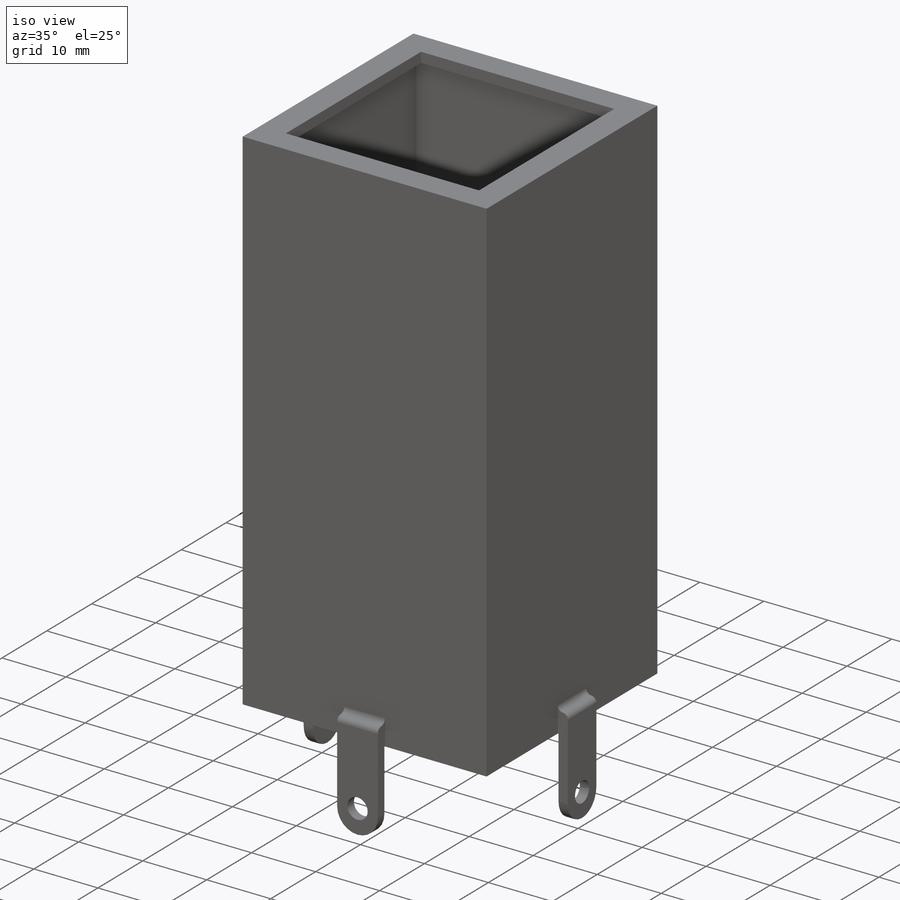
[diagram: iso view]
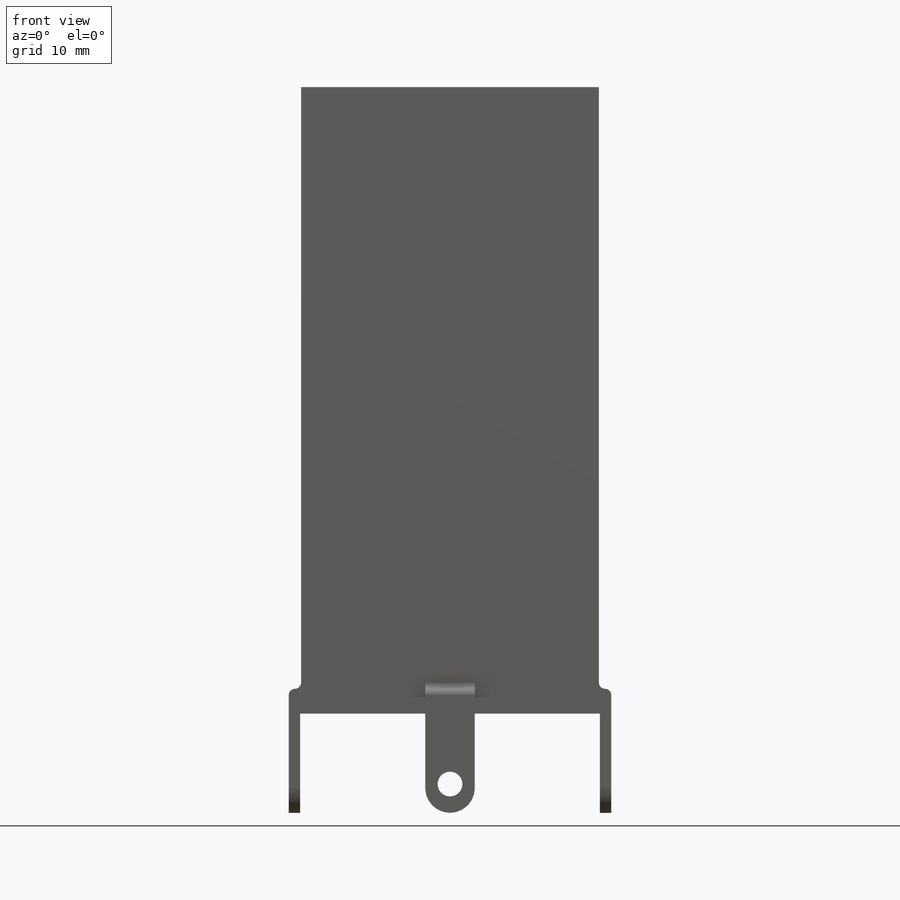
[diagram: front view]
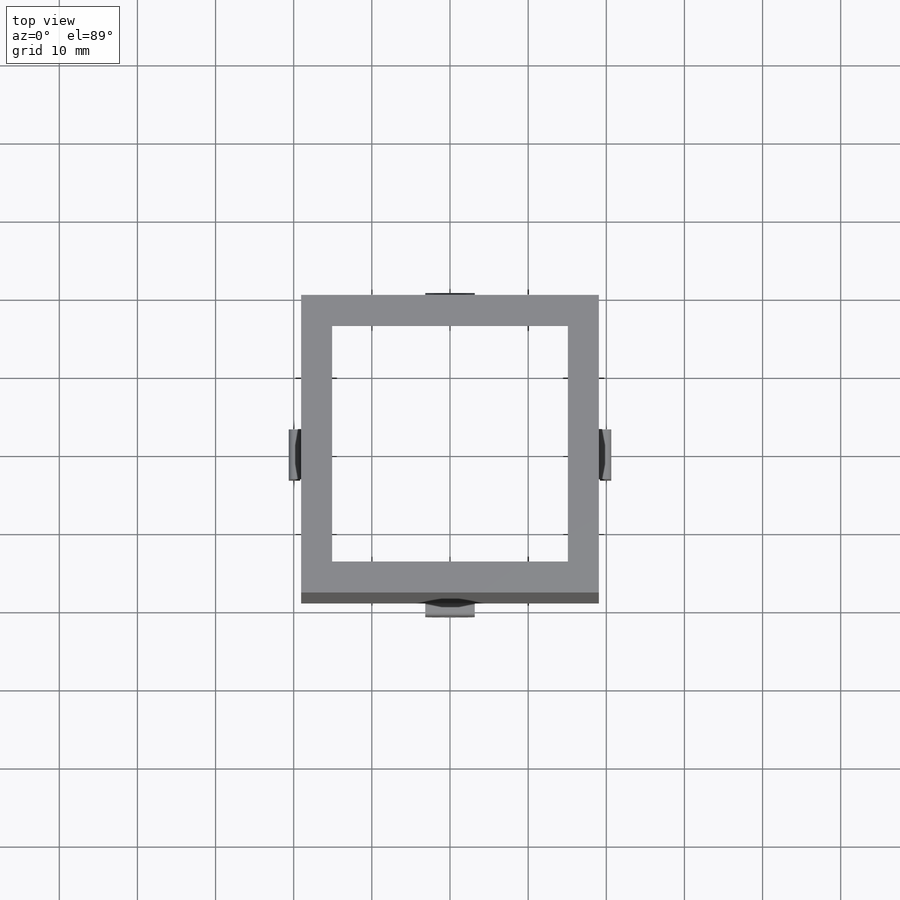
[diagram: top view]
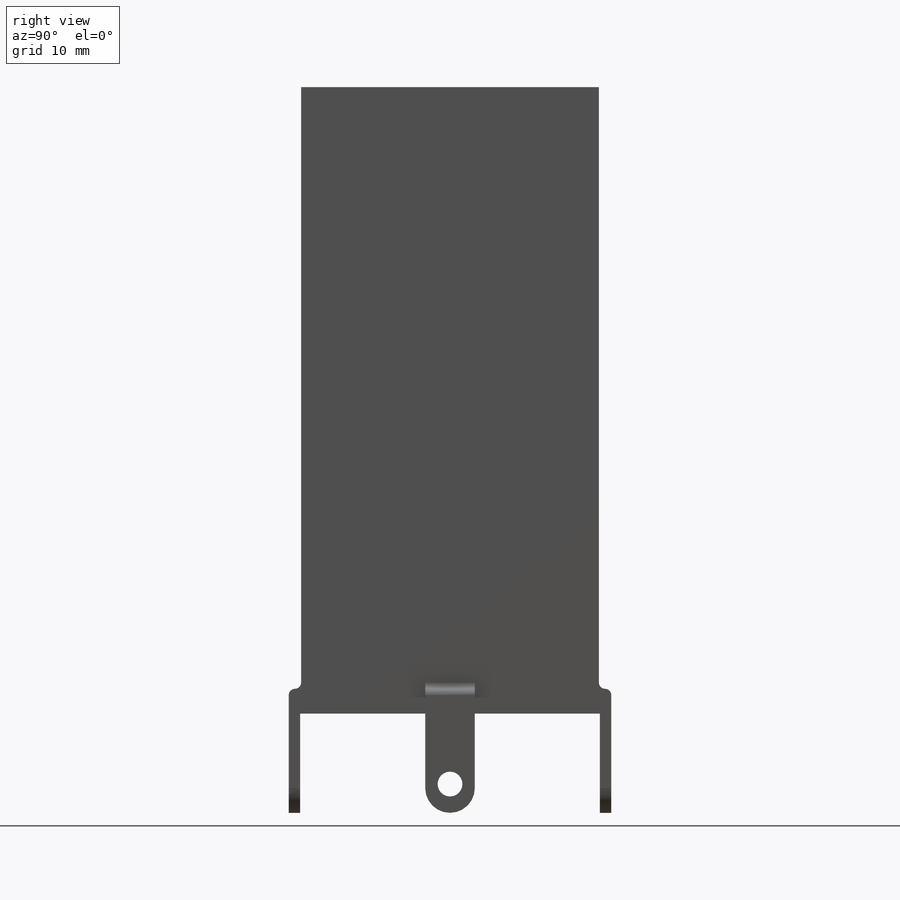
[diagram: right view]
SOLIDWORKS PART (.sldprt)
format: sldprt  version: not decoded by parser v0  size: 356,352 bytes
history: native  units: mm
features: sketch x7, extrude x4, cut_extrude x3, fillet x2, material x1 (+12 scaffold rows collapsed)
feature tree (29):
  scaffold x12  (default folders/planes/origin — collapsed)
  material  "Material <not specified>"
  sketch  "Sketch1"  dims[D1=38.1mm D2=1.5875mm D3=38.1mm]
  extrude  "Boss-Extrude1"  Depth=78.58125mm
  sketch  "Sketch2"  dims[D1=~2.38125mm]
  extrude  "Boss-Extrude2"  Depth=1.5875mm
  sketch  "Sketch3"  dims[D1=6.35mm D2=6.35mm D3=6.35mm D4=6.35mm]
  extrude  "Boss-Extrude3"  Depth=12.7mm
  sketch  "Sketch4"  dims[D1=3.175mm D2=9.017mm]
  sketch  "Sketch5"  dims[D2=3.175mm D1=9.017mm]
  cut_extrude  "Cut-Extrude3"  Depth=50.8mm
  cut_extrude  "Cut-Extrude4"  Depth=50.8mm
  sketch  "Sketch6"
  extrude  "Boss-Extrude4"  Depth=3.175mm
  fillet  "Fillet3"  Radius=0.79375mm
  fillet  "Fillet4"  Radius=3.175mm
  sketch  "Sketch7"  dims[D1=0.127mm D2=0.127mm D3=0.127mm D4=0.127mm]
  cut_extrude  "Cut-Extrude5"  Depth=25.4mm
decode coverage: 15 of 16 modeling features carry decoded parameters
note: ~ marks probable driven/reference dimensions
note: suppression state not decoded; provenance and decode notes live in map.json
